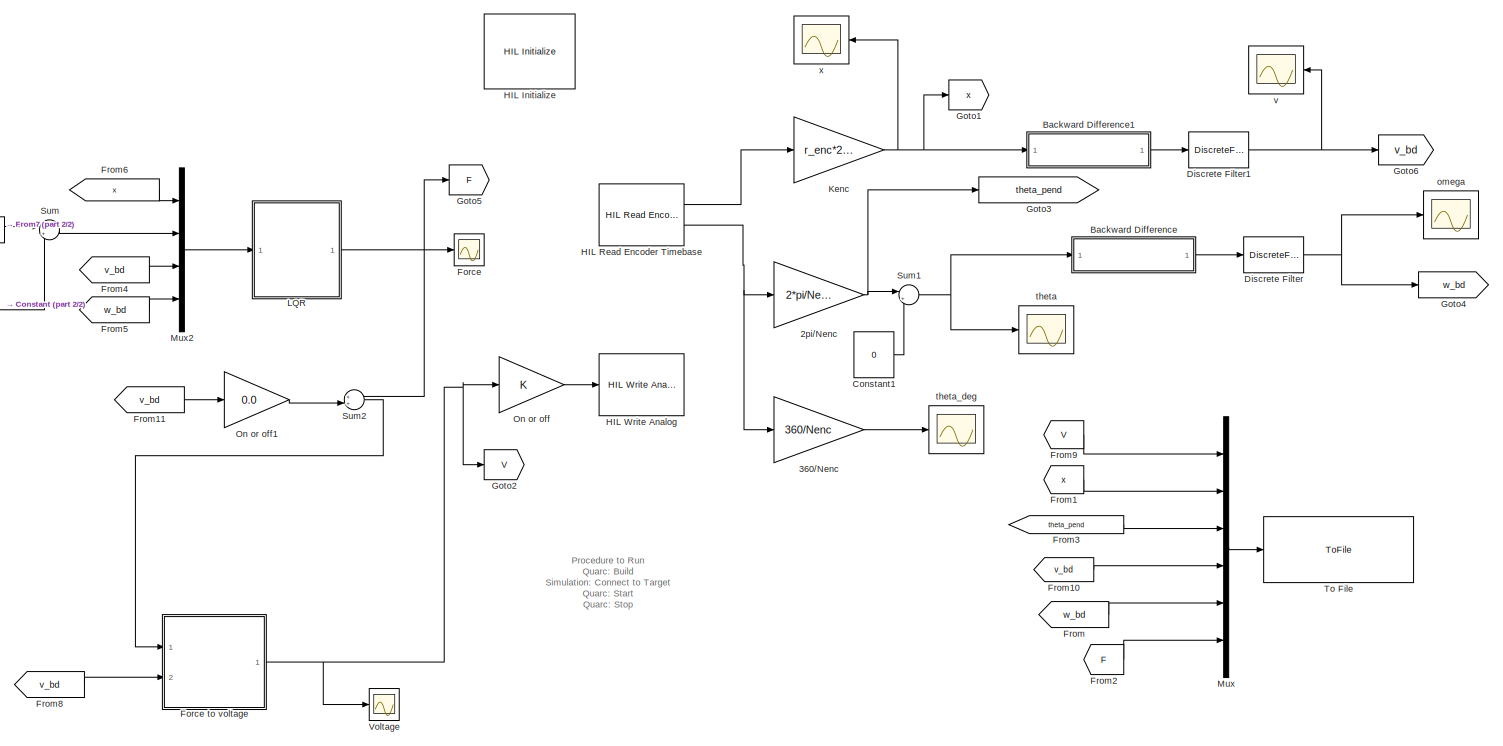
[diagram: root canvas - part 1/2, most of the canvas]
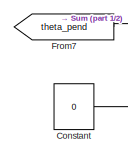
[diagram: root canvas - part 2/2, middle left region]
MODEL slx_52385203efab
KIND model
CONFIG AbsTol = auto
CONFIG EnableMultiTasking = off
CONFIG FixedStep = 0.001
CONFIG MaxStep = auto
CONFIG MinStep = auto
CONFIG RelTol = 1e-3
CONFIG SampleTimeConstraint = Unconstrained
CONFIG Solver = ode1
CONFIG SolverName = ode1
CONFIG StartTime = 0.0
CONFIG StopTime = inf
BLOCK [Gain] 2pi//Nenc
  Gain = 2*pi/Nenc
  OutDataTypeStr = Inherit: Inherit via internal rule
  ParamDataTypeStr = Inherit: Inherit via internal rule
  SaturateOnIntegerOverflow = off
BLOCK [Gain] 360//Nenc
  Gain = 360/Nenc
  OutDataTypeStr = Inherit: Inherit via internal rule
  ParamDataTypeStr = Inherit: Inherit via internal rule
  SaturateOnIntegerOverflow = off
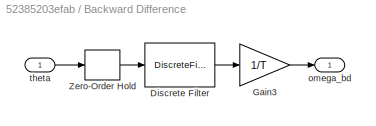
BLOCK [SubSystem] Backward Difference
  Ports = [1, 1]
  RequestExecContextInheritance = off
BLOCK [DiscreteFilter] Backward Difference/Discrete Filter
  Denominator = [1  0]
  InputPortMap = u0
  Numerator = [1 -1]
  Ports = [1, 1]
BLOCK [Gain] Backward Difference/Gain3
  Gain = 1/T
BLOCK [ZeroOrderHold] Backward Difference/Zero-Order Hold
  SampleTime = T
BLOCK [Outport] Backward Difference/omega_bd
  IconDisplay = Port number
BLOCK [Inport] Backward Difference/theta
  IconDisplay = Port number
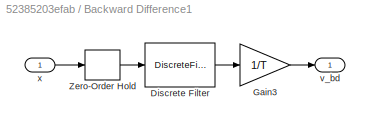
BLOCK [SubSystem] Backward Difference1
  Ports = [1, 1]
  RequestExecContextInheritance = off
BLOCK [DiscreteFilter] Backward Difference1/Discrete Filter
  Denominator = [1  0]
  InputPortMap = u0
  Numerator = [1 -1]
  Ports = [1, 1]
BLOCK [Gain] Backward Difference1/Gain3
  Gain = 1/T
BLOCK [ZeroOrderHold] Backward Difference1/Zero-Order Hold
  SampleTime = T
BLOCK [Outport] Backward Difference1/v_bd
  IconDisplay = Port number
BLOCK [Inport] Backward Difference1/x
  IconDisplay = Port number
BLOCK [Constant] Constant
  Value = 0
BLOCK [Constant] Constant1
  Value = 0
BLOCK [DiscreteFilter] Discrete Filter
  Denominator = af
  InputPortMap = u0
  Numerator = bf
  Ports = [1, 1]
BLOCK [DiscreteFilter] Discrete Filter1
  Denominator = af
  InputPortMap = u0
  Numerator = bf
  Ports = [1, 1]
BLOCK [Scope] Force
  Floating = off
  NumInputPorts = 1
  Ports = [1]
  ScopeSpecificationString = Simulink.scopes.TimeScopeBlockCfg('CurrentConfiguration', extmgr.ConfigurationSet(extmgr.Configuration('Core','General UI',true,'FigureColor',[0.501960784313725 0.501960784313725 0.501960784313725]),extmgr.Configuration('Core','Source UI',true),extmgr.Configuration('Sources','WiredSimulink',true,'DataLoggingVariableName','ScopeData3','DataLoggingSaveFormat','StructureWithTime','DataLoggingDecimati...<+2846ch>
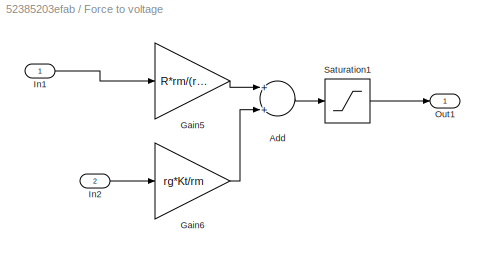
BLOCK [SubSystem] Force to voltage
  Ports = [2, 1]
  RequestExecContextInheritance = off
BLOCK [Sum] Force to voltage/Add
  InputSameDT = off
  OutDataTypeStr = Inherit: Inherit via internal rule
  Ports = [2, 1]
  SaturateOnIntegerOverflow = off
BLOCK [Gain] Force to voltage/Gain5
  Gain = R*rm/(rg*Kt)
BLOCK [Gain] Force to voltage/Gain6
  Gain = rg*Kt/rm
BLOCK [Inport] Force to voltage/In1
  IconDisplay = Port number
BLOCK [Inport] Force to voltage/In2
  IconDisplay = Port number
  Port = 2
BLOCK [Outport] Force to voltage/Out1
  IconDisplay = Port number
  VectorParamsAs1DForOutWhenUnconnected = on
BLOCK [Saturate] Force to voltage/Saturation1
  InputPortMap = u0
  LowerLimit = -Vmax
  Ports = [1, 1]
  UpperLimit = Vmax
BLOCK [From] From
  GotoTag = w_bd
BLOCK [From] From1
  GotoTag = x
BLOCK [From] From10
  GotoTag = v_bd
BLOCK [From] From11
  GotoTag = v_bd
BLOCK [From] From2
  GotoTag = F
BLOCK [From] From3
  GotoTag = theta_pend
BLOCK [From] From4
  GotoTag = v_bd
BLOCK [From] From5
  GotoTag = w_bd
BLOCK [From] From6
  GotoTag = x
BLOCK [From] From7
  GotoTag = theta_pend
BLOCK [From] From8
  GotoTag = v_bd
BLOCK [From] From9
  GotoTag = V
BLOCK [Goto] Goto1
  GotoTag = x
BLOCK [Goto] Goto2
  GotoTag = V
BLOCK [Goto] Goto3
  GotoTag = theta_pend
BLOCK [Goto] Goto4
  GotoTag = w_bd
BLOCK [Goto] Goto5
  GotoTag = F
BLOCK [Goto] Goto6
  GotoTag = v_bd
BLOCK [Reference] HIL Initialize  REF=quarc_library/Data Acquisition/Generic/Configuration/HIL Initialize
  AttributesFormatString = %<object_name> (%<board_type>-%<board_number>)
  Ports = []
  Priority = -99
  SourceBlock = quarc_library/Data Acquisition/Generic/Configuration/HIL Initialize
  SourceProductName = QUARC Targets
  SourceType = HIL Initialize
  UserDataPersistent = on
BLOCK [Reference] HIL Read Encoder Timebase  REF=quarc_library/Data Acquisition/Generic/Timebases/HIL Read Encoder
Timebase
  AttributesFormatString = (%<object_name>)
  Ports = [0, 2]
  SourceBlock = quarc_library/Data Acquisition/Generic/Timebases/HIL Read Encoder\nTimebase
  SourceProductName = QUARC Targets
  SourceType = HIL Read Encoder Timebase
  UserDataPersistent = on
BLOCK [Reference] HIL Write Analog  REF=quarc_library/Data Acquisition/Generic/Immediate I//O/HIL Write Analog
  AttributesFormatString = (%<object_name>)
  Ports = [1]
  SourceBlock = quarc_library/Data Acquisition/Generic/Immediate I//O/HIL Write Analog
  SourceProductName = QUARC Targets
  SourceType = HIL Write Analog
  UserDataPersistent = on
BLOCK [Gain] Kenc
  Gain = r_enc*2*pi/Nenc
  OutDataTypeStr = Inherit: Inherit via internal rule
  ParamDataTypeStr = Inherit: Inherit via internal rule
  SaturateOnIntegerOverflow = off
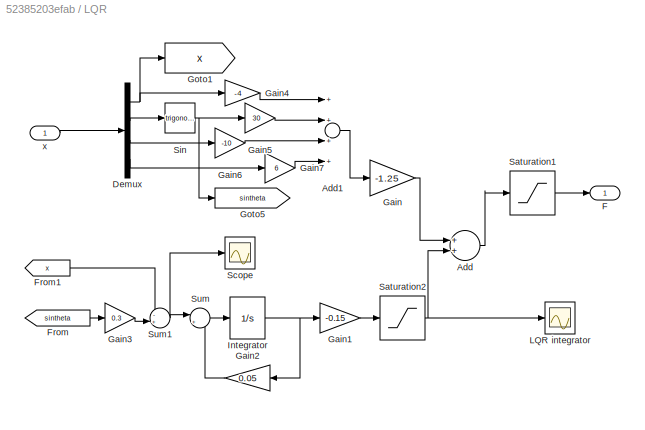
BLOCK [SubSystem] LQR 
  Ports = [1, 1]
  RequestExecContextInheritance = off
BLOCK [Sum] LQR /Add
  InputSameDT = off
  OutDataTypeStr = Inherit: Inherit via internal rule
  Ports = [2, 1]
  SaturateOnIntegerOverflow = off
BLOCK [Sum] LQR /Add1
  InputSameDT = off
  Inputs = ++++
  OutDataTypeStr = Inherit: Inherit via internal rule
  Ports = [4, 1]
  SaturateOnIntegerOverflow = off
BLOCK [Demux] LQR /Demux
  DisplayOption = bar
  Ports = [1, 4]
BLOCK [Outport] LQR /F
  IconDisplay = Port number
BLOCK [From] LQR /From
  GotoTag = sintheta
BLOCK [From] LQR /From1
  GotoTag = x
BLOCK [Gain] LQR /Gain
  Gain = -1.25
  OutDataTypeStr = Inherit: Inherit via internal rule
  ParamDataTypeStr = Inherit: Inherit via internal rule
  SaturateOnIntegerOverflow = off
BLOCK [Gain] LQR /Gain1
  Gain = -0.15
  OutDataTypeStr = Inherit: Inherit via internal rule
  ParamDataTypeStr = Inherit: Inherit via internal rule
  SaturateOnIntegerOverflow = off
BLOCK [Gain] LQR /Gain2
  Gain = 0.05
  OutDataTypeStr = Inherit: Inherit via internal rule
  ParamDataTypeStr = Inherit: Inherit via internal rule
  SaturateOnIntegerOverflow = off
BLOCK [Gain] LQR /Gain3
  Gain = 0.3
  OutDataTypeStr = Inherit: Inherit via internal rule
  ParamDataTypeStr = Inherit: Inherit via internal rule
  SaturateOnIntegerOverflow = off
BLOCK [Gain] LQR /Gain4
  Gain = -4
  OutDataTypeStr = Inherit: Inherit via internal rule
  ParamDataTypeStr = Inherit: Inherit via internal rule
  SaturateOnIntegerOverflow = off
BLOCK [Gain] LQR /Gain5
  Gain = 30
  OutDataTypeStr = Inherit: Inherit via internal rule
  ParamDataTypeStr = Inherit: Inherit via internal rule
  SaturateOnIntegerOverflow = off
BLOCK [Gain] LQR /Gain6
  Gain = -10
  OutDataTypeStr = Inherit: Inherit via internal rule
  ParamDataTypeStr = Inherit: Inherit via internal rule
  SaturateOnIntegerOverflow = off
BLOCK [Gain] LQR /Gain7
  Gain = 6
  OutDataTypeStr = Inherit: Inherit via internal rule
  ParamDataTypeStr = Inherit: Inherit via internal rule
  SaturateOnIntegerOverflow = off
BLOCK [Goto] LQR /Goto1
  GotoTag = x
BLOCK [Goto] LQR /Goto5
  GotoTag = sintheta
BLOCK [Integrator] LQR /Integrator
  Ports = [1, 1]
BLOCK [Scope] LQR /LQR integrator 
  Floating = off
  NumInputPorts = 1
  Ports = [1]
  ScopeSpecificationString = Simulink.scopes.TimeScopeBlockCfg('CurrentConfiguration', extmgr.ConfigurationSet(extmgr.Configuration('Core','General UI',true,'FigureColor',[0.501960784313725 0.501960784313725 0.501960784313725]),extmgr.Configuration('Core','Source UI',true),extmgr.Configuration('Sources','WiredSimulink',true,'DataLoggingVariableName','ScopeData1','DataLoggingSaveFormat','StructureWithTime','DataLoggingDecimati...<+2863ch>
BLOCK [Saturate] LQR /Saturation1
  InputPortMap = u0
  LowerLimit = -Fmax
  Ports = [1, 1]
  UpperLimit = Fmax
BLOCK [Saturate] LQR /Saturation2
  InputPortMap = u0
  LowerLimit = -1.0
  Ports = [1, 1]
  UpperLimit = 1.0
BLOCK [Scope] LQR /Scope
  Floating = off
  NumInputPorts = 1
  Ports = [1]
  ScopeSpecificationString = Simulink.scopes.TimeScopeBlockCfg('CurrentConfiguration', extmgr.ConfigurationSet(extmgr.Configuration('Core','General UI',true),extmgr.Configuration('Core','Source UI',true),extmgr.Configuration('Sources','WiredSimulink',true,'DataLoggingVariableName','ScopeData2'),extmgr.Configuration('Visuals','Time Domain',true,'SerializedDisplays',{struct('MinYLimReal','0.1075','MaxYLimReal','0.17251','YLabel...<+1435ch>
BLOCK [Trigonometry] LQR /Sin
  Ports = [1, 1]
BLOCK [Sum] LQR /Sum
  IconShape = round
  InputSameDT = off
  Inputs = |+-
  OutDataTypeStr = Inherit: Inherit via internal rule
  Ports = [2, 1]
  SaturateOnIntegerOverflow = off
BLOCK [Sum] LQR /Sum1
  IconShape = round
  InputSameDT = off
  Inputs = -+|
  OutDataTypeStr = Inherit: Inherit via internal rule
  Ports = [2, 1]
  SaturateOnIntegerOverflow = off
BLOCK [Inport] LQR /x
  IconDisplay = Port number
BLOCK [Mux] Mux
  DisplayOption = bar
  Inputs = 6
  Ports = [6, 1]
BLOCK [Mux] Mux2
  DisplayOption = bar
  Ports = [4, 1]
BLOCK [Gain] On or off
  OutDataTypeStr = Inherit: Inherit via internal rule
  ParamDataTypeStr = Inherit: Inherit via internal rule
  SaturateOnIntegerOverflow = off
BLOCK [Gain] On or off1
  Gain = 0.0
  OutDataTypeStr = Inherit: Inherit via internal rule
  ParamDataTypeStr = Inherit: Inherit via internal rule
  SaturateOnIntegerOverflow = off
BLOCK [Sum] Sum
  IconShape = round
  InputSameDT = off
  Inputs = |++
  OutDataTypeStr = Inherit: Inherit via internal rule
  Ports = [2, 1]
  SaturateOnIntegerOverflow = off
BLOCK [Sum] Sum1
  IconShape = round
  InputSameDT = off
  Inputs = |++
  OutDataTypeStr = Inherit: Inherit via internal rule
  Ports = [2, 1]
  SaturateOnIntegerOverflow = off
BLOCK [Sum] Sum2
  IconShape = round
  InputSameDT = off
  Inputs = ++|
  OutDataTypeStr = Inherit: Inherit via internal rule
  Ports = [2, 1]
  SaturateOnIntegerOverflow = off
BLOCK [ToFile] To File
  Filename = cartpole_MOE.mat
  MatrixName = cart_data
  Ports = [1]
  SampleTime = T
BLOCK [Scope] Voltage
  Floating = off
  NumInputPorts = 1
  Ports = [1]
  ScopeSpecificationString = Simulink.scopes.TimeScopeBlockCfg('CurrentConfiguration', extmgr.ConfigurationSet(extmgr.Configuration('Core','General UI',true,'FigureColor',[0.501960784313725 0.501960784313725 0.501960784313725]),extmgr.Configuration('Core','Source UI',true),extmgr.Configuration('Sources','WiredSimulink',true,'DataLoggingVariableName','ScopeData2','DataLoggingSaveFormat','StructureWithTime','DataLoggingDecimati...<+2824ch>
BLOCK [Scope] omega
  Floating = off
  NumInputPorts = 1
  Ports = [1]
  ScopeSpecificationString = Simulink.scopes.TimeScopeBlockCfg('CurrentConfiguration', extmgr.ConfigurationSet(extmgr.Configuration('Core','General UI',true,'FigureColor',[0.8 0.8 0.8]),extmgr.Configuration('Core','Source UI',true),extmgr.Configuration('Sources','WiredSimulink',true,'DataLoggingVariableName','ScopeData2','DataLoggingSaveFormat','Array','DataLoggingDecimation','1','DataLoggingDecimateData',true),extmgr.Configu...<+2915ch>
BLOCK [Scope] theta
  Floating = off
  NumInputPorts = 1
  Ports = [1]
  ScopeSpecificationString = Simulink.scopes.TimeScopeBlockCfg('CurrentConfiguration', extmgr.ConfigurationSet(extmgr.Configuration('Core','General UI',true,'FigureColor',[0.501960784313725 0.501960784313725 0.501960784313725]),extmgr.Configuration('Core','Source UI',true),extmgr.Configuration('Sources','WiredSimulink',true,'DataLoggingVariableName','ScopeData1','DataLoggingSaveFormat','Array','DataLoggingDecimation','1','Dat...<+2821ch>
BLOCK [Scope] theta_deg
  Floating = off
  NumInputPorts = 1
  Ports = [1]
  ScopeSpecificationString = Simulink.scopes.TimeScopeBlockCfg('CurrentConfiguration', extmgr.ConfigurationSet(extmgr.Configuration('Core','General UI',true,'FigureColor',[0.501960784313725 0.501960784313725 0.501960784313725]),extmgr.Configuration('Core','Source UI',true),extmgr.Configuration('Sources','WiredSimulink',true,'DataLoggingVariableName','ScopeData4','DataLoggingSaveFormat','Array','DataLoggingDecimation','1','Dat...<+2712ch>
BLOCK [Scope] v
  Floating = off
  NumInputPorts = 1
  Ports = [1]
  ScopeSpecificationString = Simulink.scopes.TimeScopeBlockCfg('CurrentConfiguration', extmgr.ConfigurationSet(extmgr.Configuration('Core','General UI',true,'FigureColor',[0.501960784313725 0.501960784313725 0.501960784313725]),extmgr.Configuration('Core','Source UI',true),extmgr.Configuration('Sources','WiredSimulink',true,'DataLoggingVariableName','ScopeData1','DataLoggingSaveFormat','Array','DataLoggingDecimation','1','Dat...<+2194ch>
BLOCK [Scope] x
  Floating = off
  NumInputPorts = 1
  Ports = [1]
  ScopeSpecificationString = Simulink.scopes.TimeScopeBlockCfg('CurrentConfiguration', extmgr.ConfigurationSet(extmgr.Configuration('Core','General UI',true,'FigureColor',[0.501960784313725 0.501960784313725 0.501960784313725]),extmgr.Configuration('Core','Source UI',true),extmgr.Configuration('Sources','WiredSimulink',true,'DataLoggingVariableName','ScopeData3','DataLoggingSaveFormat','Array','DataLoggingDecimation','1','Dat...<+2970ch>
ANNOTATION (root): Procedure to Run Quarc: Build Simulation: Connect to Target Quarc: Start Quarc: Stop
NET 2pi//Nenc:1 -> Goto3:1, Sum1:1
LINE 360//Nenc:1 -> theta_deg:1
LINE Backward Difference/Discrete Filter:1 -> Backward Difference/Gain3:1
LINE Backward Difference/Gain3:1 -> Backward Difference/omega_bd:1
LINE Backward Difference/Zero-Order Hold:1 -> Backward Difference/Discrete Filter:1
LINE Backward Difference/theta:1 -> Backward Difference/Zero-Order Hold:1
LINE Backward Difference1/Discrete Filter:1 -> Backward Difference1/Gain3:1
LINE Backward Difference1/Gain3:1 -> Backward Difference1/v_bd:1
LINE Backward Difference1/Zero-Order Hold:1 -> Backward Difference1/Discrete Filter:1
LINE Backward Difference1/x:1 -> Backward Difference1/Zero-Order Hold:1
LINE Backward Difference1:1 -> Discrete Filter1:1
LINE Backward Difference:1 -> Discrete Filter:1
LINE Constant1:1 -> Sum1:2
LINE Constant:1 -> Sum:2
NET Discrete Filter1:1 -> Goto6:1, v:1
NET Discrete Filter:1 -> Goto4:1, omega:1
LINE Force to voltage/Add:1 -> Force to voltage/Saturation1:1
LINE Force to voltage/Gain5:1 -> Force to voltage/Add:1
LINE Force to voltage/Gain6:1 -> Force to voltage/Add:2
LINE Force to voltage/In1:1 -> Force to voltage/Gain5:1
LINE Force to voltage/In2:1 -> Force to voltage/Gain6:1
LINE Force to voltage/Saturation1:1 -> Force to voltage/Out1:1
NET Force to voltage:1 -> Goto2:1, On or off:1, Voltage:1
LINE From10:1 -> Mux:4
LINE From11:1 -> On or off1:1
LINE From1:1 -> Mux:2
LINE From2:1 -> Mux:6
LINE From3:1 -> Mux:3
LINE From4:1 -> Mux2:3
LINE From5:1 -> Mux2:4
LINE From6:1 -> Mux2:1
LINE From7:1 -> Sum:1
LINE From8:1 -> Force to voltage:2
LINE From9:1 -> Mux:1
LINE From:1 -> Mux:5
LINE HIL Read Encoder Timebase:1 -> Kenc:1
NET HIL Read Encoder Timebase:2 -> 2pi//Nenc:1, 360//Nenc:1
NET Kenc:1 -> Backward Difference1:1, Goto1:1, x:1
LINE LQR /Add1:1 -> LQR /Gain:1
LINE LQR /Add:1 -> LQR /Saturation1:1
NET LQR /Demux:1 -> LQR /Gain4:1, LQR /Goto1:1
LINE LQR /Demux:2 -> LQR /Sin:1
LINE LQR /Demux:3 -> LQR /Gain6:1
LINE LQR /Demux:4 -> LQR /Gain7:1
LINE LQR /From1:1 -> LQR /Sum1:1
LINE LQR /From:1 -> LQR /Gain3:1
LINE LQR /Gain1:1 -> LQR /Saturation2:1
LINE LQR /Gain2:1 -> LQR /Sum:2
LINE LQR /Gain3:1 -> LQR /Sum1:2
LINE LQR /Gain4:1 -> LQR /Add1:1
LINE LQR /Gain5:1 -> LQR /Add1:2
LINE LQR /Gain6:1 -> LQR /Add1:3
LINE LQR /Gain7:1 -> LQR /Add1:4
LINE LQR /Gain:1 -> LQR /Add:1
NET LQR /Integrator:1 -> LQR /Gain1:1, LQR /Gain2:1
LINE LQR /Saturation1:1 -> LQR /F:1
NET LQR /Saturation2:1 -> LQR /Add:2, LQR /LQR integrator :1
NET LQR /Sin:1 -> LQR /Gain5:1, LQR /Goto5:1
NET LQR /Sum1:1 -> LQR /Scope:1, LQR /Sum:1
LINE LQR /Sum:1 -> LQR /Integrator:1
LINE LQR /x:1 -> LQR /Demux:1
NET LQR :1 -> Force:1, Goto5:1, Sum2:1
LINE Mux2:1 -> LQR :1
LINE Mux:1 -> To File:1
LINE On or off1:1 -> Sum2:2
LINE On or off:1 -> HIL Write Analog:1
NET Sum1:1 -> Backward Difference:1, theta:1
LINE Sum2:1 -> Force to voltage:1
LINE Sum:1 -> Mux2:2
note: NET lines group one-source signal fan-out (src -> all destinations, sorted); 1:1 wires keep LINE
